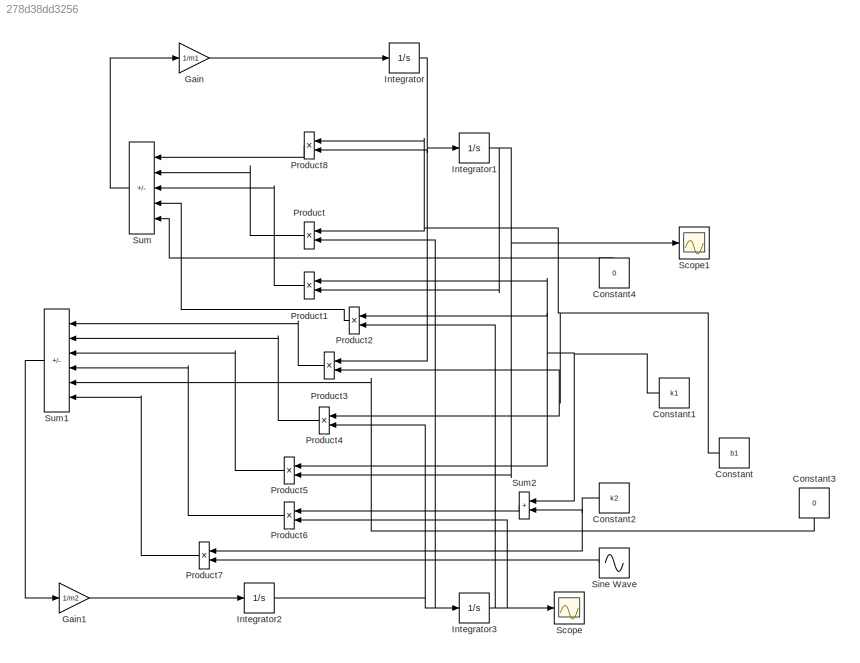
MODEL slx_278d38dd3256
KIND model
CONFIG AbsTol = auto
CONFIG EnableMultiTasking = off
CONFIG FixedStep = auto
CONFIG MaxStep = auto
CONFIG MinStep = auto
CONFIG RelTol = 1e-3
CONFIG SampleTimeConstraint = Unconstrained
CONFIG SolverName = VariableStepAuto
CONFIG StartTime = 0.0
CONFIG StopTime = 25
BLOCK [Constant] Constant
  NameLocation = top
  Value = b1
BLOCK [Constant] Constant1
  NameLocation = top
  Value = k1
BLOCK [Constant] Constant2
  NameLocation = top
  Value = k2
BLOCK [Constant] Constant3
  NameLocation = left
  Value = 0
BLOCK [Constant] Constant4
  NameLocation = right
  Value = 0
BLOCK [Gain] Gain
  Gain = 1/m1
BLOCK [Gain] Gain1
  Gain = 1/m2
BLOCK [Integrator] Integrator
BLOCK [Integrator] Integrator1
BLOCK [Integrator] Integrator2
BLOCK [Integrator] Integrator3
BLOCK [Product] Product
  NameLocation = top
BLOCK [Product] Product1
  NameLocation = top
BLOCK [Product] Product2
  NameLocation = top
BLOCK [Product] Product3
  NameLocation = top
BLOCK [Product] Product4
  NameLocation = top
BLOCK [Product] Product5
  NameLocation = top
BLOCK [Product] Product6
  NameLocation = top
BLOCK [Product] Product7
  NameLocation = top
BLOCK [Product] Product8
  NameLocation = top
BLOCK [Scope] Scope
  Floating = off
  NumInputPorts = 1
  ScopeSpecificationString = Simulink.scopes.TimeScopeBlockCfg('CurrentConfiguration', extmgr.ConfigurationSet(extmgr.Configuration('Core','General UI',true),extmgr.Configuration('Core','Source UI',true),extmgr.Configuration('Sources','WiredSimulink',true),extmgr.Configuration('Visuals','Time Domain',true,'SerializedDisplays',{struct('MinYLimReal','-0.06633','MaxYLimReal','0.07095','YLabelReal','','MinYLimMag','0.00000','MaxY...<+1360ch>
BLOCK [Scope] Scope1
  Floating = off
  NumInputPorts = 1
  ScopeSpecificationString = Simulink.scopes.TimeScopeBlockCfg('CurrentConfiguration', extmgr.ConfigurationSet(extmgr.Configuration('Core','General UI',true),extmgr.Configuration('Core','Source UI',true),extmgr.Configuration('Sources','WiredSimulink',true,'DataLoggingVariableName','ScopeData1'),extmgr.Configuration('Visuals','Time Domain',true,'SerializedDisplays',{struct('MinYLimReal','-0.07024','MaxYLimReal','0.08057','YLab...<+1399ch>
BLOCK [Sin] Sine Wave
  Amplitude = 0.05
  Frequency = 0.5*pi
  NameLocation = top
  SampleTime = 0
BLOCK [Sum] Sum
  IconShape = rectangular
  Inputs = -+-++
  NameLocation = top
BLOCK [Sum] Sum1
  IconShape = rectangular
  Inputs = +-+--+
  NameLocation = top
BLOCK [Sum] Sum2
  IconShape = rectangular
  NameLocation = top
NET Constant1:1 -> Product1:1, Product2:1, Product5:1, Sum2:1
NET Constant2:1 -> Product7:1, Sum2:2
LINE Constant3:1 -> Sum1:5
LINE Constant4:1 -> Sum:5
NET Constant:1 -> Product3:2, Product4:1, Product8:1, Product:1
LINE Gain1:1 -> Integrator2:1
LINE Gain:1 -> Integrator:1
NET Integrator1:1 -> Product1:2, Product5:2, Scope1:1
NET Integrator2:1 -> Integrator3:1, Product4:2, Product:2
NET Integrator3:1 -> Product2:2, Product6:2, Scope:1
NET Integrator:1 -> Integrator1:1, Product3:1, Product8:2
LINE Product1:1 -> Sum:3
LINE Product2:1 -> Sum:4
LINE Product3:1 -> Sum1:1
LINE Product4:1 -> Sum1:2
LINE Product5:1 -> Sum1:3
LINE Product6:1 -> Sum1:4
LINE Product7:1 -> Sum1:6
LINE Product8:1 -> Sum:1
LINE Product:1 -> Sum:2
LINE Sine Wave:1 -> Product7:2
LINE Sum1:1 -> Gain1:1
LINE Sum2:1 -> Product6:1
LINE Sum:1 -> Gain:1
note: NET lines group one-source signal fan-out (src -> all destinations, sorted); 1:1 wires keep LINE
